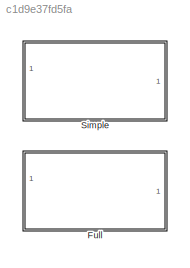
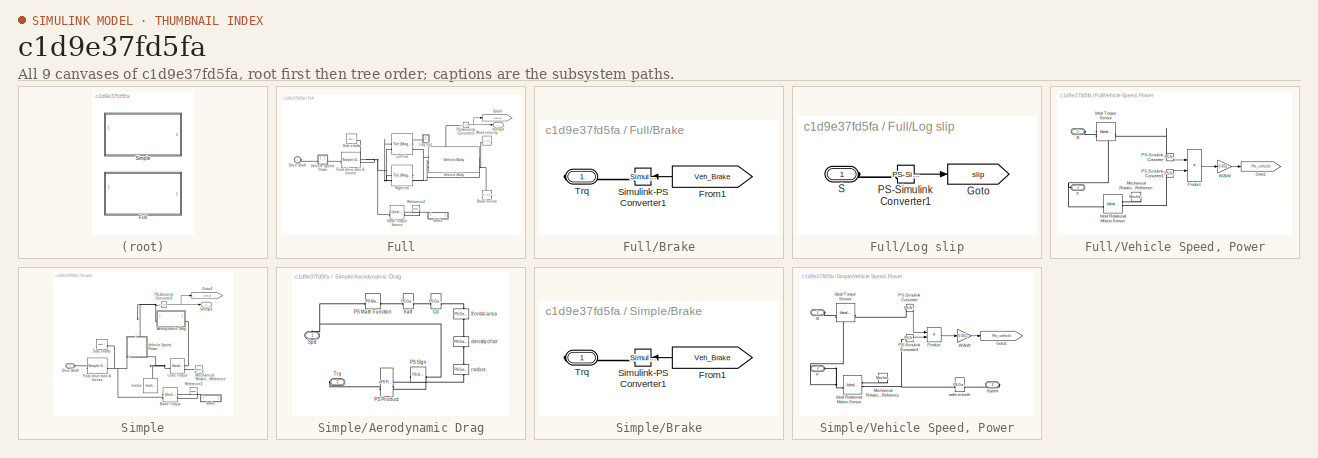
[diagram: thumbnail index - all 9 canvases of the model, root first then tree order]
MODEL slx_c1d9e37fd5fa
KIND library
CONFIG EnableMultiTasking = on
CONFIG SolverName = ode45
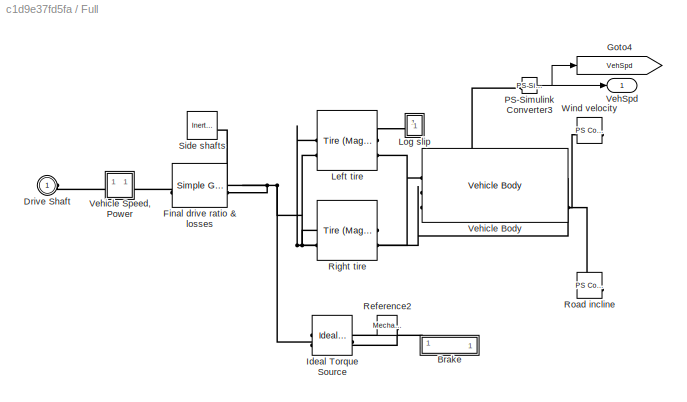
BLOCK [SubSystem] Full
BLOCK [SubSystem] Full/Brake
BLOCK [From] Full/Brake/From1
  GotoTag = Veh_Brake
  NameLocation = top
  TagVisibility = global
BLOCK [Reference] Full/Brake/Simulink-PS Converter1  REF=nesl_utility/Simulink-PS
Converter
  SourceBlock = nesl_utility/Simulink-PS\nConverter
  SourceType = Simulink-PS\nConverter
BLOCK [PMIOPort] Full/Brake/Trq
  Side = Right
BLOCK [PMIOPort] Full/Drive Shaft
  Side = Left
BLOCK [Reference] Full/Final drive ratio & losses  REF=sdl_lib/Gears/Simple Gear
  SourceBlock = sdl_lib/Gears/Simple Gear
  SourceType = Simple Gear
BLOCK [Goto] Full/Goto4
  GotoTag = VehSpd
  TagVisibility = global
BLOCK [Reference] Full/Ideal Torque Source  REF=fl_lib/Mechanical/Mechanical Sources/Ideal Torque Source
  SourceBlock = fl_lib/Mechanical/Mechanical Sources/Ideal Torque Source
  SourceType = Ideal Torque Source
BLOCK [Reference] Full/Left tire  REF=sdl_lib/Tires & Vehicles/Tire (Magic Formula)
  SourceBlock = sdl_lib/Tires & Vehicles/Tire (Magic Formula)
  SourceType = Tire (Magic Formula)
BLOCK [SubSystem] Full/Log slip
BLOCK [Goto] Full/Log slip/Goto
  GotoTag = slip
  TagVisibility = global
BLOCK [Reference] Full/Log slip/PS-Simulink Converter1  REF=nesl_utility/PS-Simulink
Converter
  SourceBlock = nesl_utility/PS-Simulink\nConverter
  SourceType = PS-Simulink\nConverter
BLOCK [PMIOPort] Full/Log slip/S
  Side = Left
BLOCK [Reference] Full/PS-Simulink Converter3  REF=nesl_utility/PS-Simulink
Converter
  SourceBlock = nesl_utility/PS-Simulink\nConverter
  SourceType = PS-Simulink\nConverter
BLOCK [Reference] Full/Reference2  REF=fl_lib/Mechanical/Rotational Elements/Mechanical
Rotational Reference
  NameLocation = top
  SourceBlock = fl_lib/Mechanical/Rotational Elements/Mechanical\nRotational Reference
  SourceType = Mechanical\nRotational Reference
BLOCK [Reference] Full/Right tire  REF=sdl_lib/Tires & Vehicles/Tire (Magic Formula)
  SourceBlock = sdl_lib/Tires & Vehicles/Tire (Magic Formula)
  SourceType = Tire (Magic Formula)
BLOCK [Reference] Full/Road incline  REF=fl_lib/Physical Signals/Sources/PS Constant
  SourceBlock = fl_lib/Physical Signals/Sources/PS Constant
  SourceType = PS Constant
BLOCK [Reference] Full/Side shafts  REF=fl_lib/Mechanical/Rotational Elements/Inertia
  NameLocation = top
  SourceBlock = fl_lib/Mechanical/Rotational Elements/Inertia
  SourceType = Inertia
BLOCK [Outport] Full/VehSpd
  VectorParamsAs1DForOutWhenUnconnected = off
BLOCK [Reference] Full/Vehicle Body  REF=sdl_lib/Tires & Vehicles/Vehicle Body
  SourceBlock = sdl_lib/Tires & Vehicles/Vehicle Body
  SourceType = Vehicle Body
BLOCK [SubSystem] Full/Vehicle Speed, Power
BLOCK [PMIOPort] Full/Vehicle Speed, Power/B
  NameLocation = top
  Side = Left
BLOCK [PMIOPort] Full/Vehicle Speed, Power/F
  NameLocation = top
  Port = 2
  Side = Right
BLOCK [Goto] Full/Vehicle Speed, Power/Goto1
  GotoTag = Pm_vehicle
  TagVisibility = global
BLOCK [Reference] Full/Vehicle Speed, Power/Ideal Rotational Motion Sensor  REF=fl_lib/Mechanical/Mechanical Sensors/Ideal Rotational
Motion Sensor
  SourceBlock = fl_lib/Mechanical/Mechanical Sensors/Ideal Rotational\nMotion Sensor
  SourceType = Ideal Rotational\nMotion Sensor
BLOCK [Reference] Full/Vehicle Speed, Power/Ideal Torque Sensor  REF=fl_lib/Mechanical/Mechanical Sensors/Ideal Torque Sensor
  SourceBlock = fl_lib/Mechanical/Mechanical Sensors/Ideal Torque Sensor
  SourceType = Ideal Torque Sensor
BLOCK [Reference] Full/Vehicle Speed, Power/Mechanical Rotational Reference  REF=fl_lib/Mechanical/Rotational Elements/Mechanical
Rotational Reference
  NameLocation = top
  SourceBlock = fl_lib/Mechanical/Rotational Elements/Mechanical\nRotational Reference
  SourceType = Mechanical\nRotational Reference
BLOCK [Reference] Full/Vehicle Speed, Power/PS-Simulink Converter  REF=nesl_utility/PS-Simulink
Converter
  SourceBlock = nesl_utility/PS-Simulink\nConverter
  SourceType = PS-Simulink\nConverter
BLOCK [Reference] Full/Vehicle Speed, Power/PS-Simulink Converter1  REF=nesl_utility/PS-Simulink
Converter
  SourceBlock = nesl_utility/PS-Simulink\nConverter
  SourceType = PS-Simulink\nConverter
BLOCK [Product] Full/Vehicle Speed, Power/Product
  RndMeth = Zero
BLOCK [Gain] Full/Vehicle Speed, Power/W2kW
  Gain = 0.001
BLOCK [Reference] Full/Wind velocity  REF=fl_lib/Physical Signals/Sources/PS Constant
  SourceBlock = fl_lib/Physical Signals/Sources/PS Constant
  SourceType = PS Constant
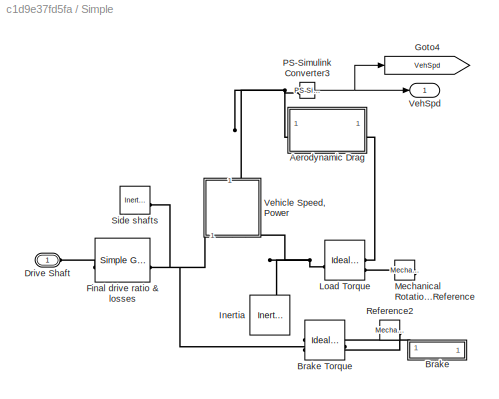
BLOCK [SubSystem] Simple
BLOCK [SubSystem] Simple/Aerodynamic Drag
BLOCK [Reference] Simple/Aerodynamic Drag/Cd  REF=fl_lib/Physical Signals/Functions/PS Gain
  SourceBlock = fl_lib/Physical Signals/Functions/PS Gain
  SourceType = PS Gain
BLOCK [Reference] Simple/Aerodynamic Drag/PS Math Function  REF=fl_lib/Physical Signals/Functions/PS Math Function
  SourceBlock = fl_lib/Physical Signals/Functions/PS Math Function
  SourceType = PS Math Function
BLOCK [Reference] Simple/Aerodynamic Drag/PS Product  REF=fl_lib/Physical Signals/Functions/PS Product
  NameLocation = top
  SourceBlock = fl_lib/Physical Signals/Functions/PS Product
  SourceType = PS Product
BLOCK [Reference] Simple/Aerodynamic Drag/PS Sign  REF=fl_lib/Physical Signals/Nonlinear Operators/PS Sign
  NameLocation = top
  SourceBlock = fl_lib/Physical Signals/Nonlinear Operators/PS Sign
  SourceType = PS Sign
BLOCK [PMIOPort] Simple/Aerodynamic Drag/Spd
  NameLocation = right
  Side = Left
BLOCK [PMIOPort] Simple/Aerodynamic Drag/Trq
  Port = 2
  Side = Right
BLOCK [Reference] Simple/Aerodynamic Drag/density of air  REF=fl_lib/Physical Signals/Functions/PS Gain
  NameLocation = right
  SourceBlock = fl_lib/Physical Signals/Functions/PS Gain
  SourceType = PS Gain
BLOCK [Reference] Simple/Aerodynamic Drag/frontal area  REF=fl_lib/Physical Signals/Functions/PS Gain
  NameLocation = right
  SourceBlock = fl_lib/Physical Signals/Functions/PS Gain
  SourceType = PS Gain
BLOCK [Reference] Simple/Aerodynamic Drag/half  REF=fl_lib/Physical Signals/Functions/PS Gain
  SourceBlock = fl_lib/Physical Signals/Functions/PS Gain
  SourceType = PS Gain
BLOCK [Reference] Simple/Aerodynamic Drag/radius  REF=fl_lib/Physical Signals/Functions/PS Gain
  NameLocation = right
  SourceBlock = fl_lib/Physical Signals/Functions/PS Gain
  SourceType = PS Gain
BLOCK [SubSystem] Simple/Brake
BLOCK [Reference] Simple/Brake Torque  REF=fl_lib/Mechanical/Mechanical Sources/Ideal Torque Source
  SourceBlock = fl_lib/Mechanical/Mechanical Sources/Ideal Torque Source
  SourceType = Ideal Torque Source
BLOCK [From] Simple/Brake/From1
  GotoTag = Veh_Brake
  NameLocation = top
BLOCK [Reference] Simple/Brake/Simulink-PS Converter1  REF=nesl_utility/Simulink-PS
Converter
  SourceBlock = nesl_utility/Simulink-PS\nConverter
  SourceType = Simulink-PS\nConverter
BLOCK [PMIOPort] Simple/Brake/Trq
  Side = Right
BLOCK [PMIOPort] Simple/Drive Shaft
  Side = Left
BLOCK [Reference] Simple/Final drive ratio & losses  REF=sdl_lib/Gears/Simple Gear
  SourceBlock = sdl_lib/Gears/Simple Gear
  SourceType = Simple Gear
BLOCK [Goto] Simple/Goto4
  GotoTag = VehSpd
  TagVisibility = global
BLOCK [Reference] Simple/Inertia  REF=fl_lib/Mechanical/Rotational Elements/Inertia
  NameLocation = left
  SourceBlock = fl_lib/Mechanical/Rotational Elements/Inertia
  SourceType = Inertia
BLOCK [Reference] Simple/Load Torque  REF=fl_lib/Mechanical/Mechanical Sources/Ideal Torque Source
  SourceBlock = fl_lib/Mechanical/Mechanical Sources/Ideal Torque Source
  SourceType = Ideal Torque Source
BLOCK [Reference] Simple/Mechanical Rotational Reference  REF=fl_lib/Mechanical/Rotational Elements/Mechanical
Rotational Reference
  NameLocation = top
  SourceBlock = fl_lib/Mechanical/Rotational Elements/Mechanical\nRotational Reference
  SourceType = Mechanical\nRotational Reference
BLOCK [Reference] Simple/PS-Simulink Converter3  REF=nesl_utility/PS-Simulink
Converter
  SourceBlock = nesl_utility/PS-Simulink\nConverter
  SourceType = PS-Simulink\nConverter
BLOCK [Reference] Simple/Reference2  REF=fl_lib/Mechanical/Rotational Elements/Mechanical
Rotational Reference
  NameLocation = top
  SourceBlock = fl_lib/Mechanical/Rotational Elements/Mechanical\nRotational Reference
  SourceType = Mechanical\nRotational Reference
BLOCK [Reference] Simple/Side shafts  REF=fl_lib/Mechanical/Rotational Elements/Inertia
  NameLocation = top
  SourceBlock = fl_lib/Mechanical/Rotational Elements/Inertia
  SourceType = Inertia
BLOCK [Outport] Simple/VehSpd
  VectorParamsAs1DForOutWhenUnconnected = off
BLOCK [SubSystem] Simple/Vehicle Speed, Power
  NameLocation = right
BLOCK [PMIOPort] Simple/Vehicle Speed, Power/B
  NameLocation = top
  Side = Left
BLOCK [PMIOPort] Simple/Vehicle Speed, Power/F
  NameLocation = top
  Port = 2
  Side = Left
BLOCK [Goto] Simple/Vehicle Speed, Power/Goto1
  GotoTag = Pm_vehicle
  TagVisibility = global
BLOCK [Reference] Simple/Vehicle Speed, Power/Ideal Rotational Motion Sensor  REF=fl_lib/Mechanical/Mechanical Sensors/Ideal Rotational
Motion Sensor
  SourceBlock = fl_lib/Mechanical/Mechanical Sensors/Ideal Rotational\nMotion Sensor
  SourceType = Ideal Rotational\nMotion Sensor
BLOCK [Reference] Simple/Vehicle Speed, Power/Ideal Torque Sensor  REF=fl_lib/Mechanical/Mechanical Sensors/Ideal Torque Sensor
  SourceBlock = fl_lib/Mechanical/Mechanical Sensors/Ideal Torque Sensor
  SourceType = Ideal Torque Sensor
BLOCK [Reference] Simple/Vehicle Speed, Power/Mechanical Rotational Reference  REF=fl_lib/Mechanical/Rotational Elements/Mechanical
Rotational Reference
  NameLocation = top
  SourceBlock = fl_lib/Mechanical/Rotational Elements/Mechanical\nRotational Reference
  SourceType = Mechanical\nRotational Reference
BLOCK [Reference] Simple/Vehicle Speed, Power/PS-Simulink Converter  REF=nesl_utility/PS-Simulink
Converter
  SourceBlock = nesl_utility/PS-Simulink\nConverter
  SourceType = PS-Simulink\nConverter
BLOCK [Reference] Simple/Vehicle Speed, Power/PS-Simulink Converter1  REF=nesl_utility/PS-Simulink
Converter
  SourceBlock = nesl_utility/PS-Simulink\nConverter
  SourceType = PS-Simulink\nConverter
BLOCK [Product] Simple/Vehicle Speed, Power/Product
  RndMeth = Zero
BLOCK [PMIOPort] Simple/Vehicle Speed, Power/Speed
  Port = 3
  Side = Right
BLOCK [Gain] Simple/Vehicle Speed, Power/W2kW
  Gain = 0.001
BLOCK [Reference] Simple/Vehicle Speed, Power/rad//s to km//h  REF=fl_lib/Physical Signals/Functions/PS Gain
  SourceBlock = fl_lib/Physical Signals/Functions/PS Gain
  SourceType = PS Gain
LINE Full/Brake/From1:1 -> Full/Brake/Simulink-PS Converter1:1
LINE Full/Log slip/PS-Simulink Converter1:1 -> Full/Log slip/Goto:1
NET Full/PS-Simulink Converter3:1 -> Full/Goto4:1, Full/VehSpd:1
LINE Full/Vehicle Speed, Power/PS-Simulink Converter1:1 -> Full/Vehicle Speed, Power/Product:2
LINE Full/Vehicle Speed, Power/PS-Simulink Converter:1 -> Full/Vehicle Speed, Power/Product:1
LINE Full/Vehicle Speed, Power/Product:1 -> Full/Vehicle Speed, Power/W2kW:1
LINE Full/Vehicle Speed, Power/W2kW:1 -> Full/Vehicle Speed, Power/Goto1:1
LINE Simple/Brake/From1:1 -> Simple/Brake/Simulink-PS Converter1:1
NET Simple/PS-Simulink Converter3:1 -> Simple/Goto4:1, Simple/VehSpd:1
LINE Simple/Vehicle Speed, Power/PS-Simulink Converter1:1 -> Simple/Vehicle Speed, Power/Product:2
LINE Simple/Vehicle Speed, Power/PS-Simulink Converter:1 -> Simple/Vehicle Speed, Power/Product:1
LINE Simple/Vehicle Speed, Power/Product:1 -> Simple/Vehicle Speed, Power/W2kW:1
LINE Simple/Vehicle Speed, Power/W2kW:1 -> Simple/Vehicle Speed, Power/Goto1:1
PLINE Full/Brake/Simulink-PS Converter1:RConn1 -- Full/Brake/Trq:RConn1
PLINE Full/Brake:RConn1 -- Full/Ideal Torque Source:RConn1
PLINE Full/Drive Shaft:RConn1 -- Full/Vehicle Speed, Power:LConn1
PLINE Full/Final drive ratio & losses:LConn1 -- Full/Vehicle Speed, Power:RConn1
PNET net1: Full/Final drive ratio & losses:RConn1 -- Full/Ideal Torque Source:LConn1 -- Full/Left tire:LConn2 -- Full/Right tire:LConn2 -- Full/Side shafts:LConn1
PLINE Full/Ideal Torque Source:RConn2 -- Full/Reference2:LConn1
PNET net2: Full/Left tire:LConn1 -- Full/Right tire:LConn1 -- Full/Vehicle Body:RConn1
PLINE Full/Left tire:RConn1 -- Full/Log slip:LConn1
PNET net3: Full/Left tire:RConn2 -- Full/Right tire:RConn2 -- Full/Vehicle Body:LConn1
PLINE Full/Log slip/PS-Simulink Converter1:LConn1 -- Full/Log slip/S:RConn1
PLINE Full/PS-Simulink Converter3:LConn1 -- Full/Vehicle Body:LConn2
PLINE Full/Road incline:RConn1 -- Full/Vehicle Body:RConn3
PLINE Full/Vehicle Body:LConn3 -- Full/Wind velocity:RConn1
PLINE Full/Vehicle Speed, Power/B:RConn1 -- Full/Vehicle Speed, Power/Ideal Torque Sensor:LConn1
PNET net4: Full/Vehicle Speed, Power/F:RConn1 -- Full/Vehicle Speed, Power/Ideal Rotational Motion Sensor:LConn1 -- Full/Vehicle Speed, Power/Ideal Torque Sensor:RConn1
PLINE Full/Vehicle Speed, Power/Ideal Rotational Motion Sensor:RConn1 -- Full/Vehicle Speed, Power/Mechanical Rotational Reference:LConn1
PLINE Full/Vehicle Speed, Power/Ideal Rotational Motion Sensor:RConn2 -- Full/Vehicle Speed, Power/PS-Simulink Converter1:LConn1
PLINE Full/Vehicle Speed, Power/Ideal Torque Sensor:RConn2 -- Full/Vehicle Speed, Power/PS-Simulink Converter:LConn1
PLINE Simple/Aerodynamic Drag/Cd:LConn1 -- Simple/Aerodynamic Drag/half:RConn1
PLINE Simple/Aerodynamic Drag/Cd:RConn1 -- Simple/Aerodynamic Drag/frontal area:LConn1
PNET net5: Simple/Aerodynamic Drag/PS Math Function:LConn1 -- Simple/Aerodynamic Drag/PS Sign:LConn1 -- Simple/Aerodynamic Drag/Spd:RConn1
PLINE Simple/Aerodynamic Drag/PS Math Function:RConn1 -- Simple/Aerodynamic Drag/half:LConn1
PLINE Simple/Aerodynamic Drag/PS Product:LConn1 -- Simple/Aerodynamic Drag/radius:RConn1
PLINE Simple/Aerodynamic Drag/PS Product:LConn2 -- Simple/Aerodynamic Drag/PS Sign:RConn1
PLINE Simple/Aerodynamic Drag/PS Product:RConn1 -- Simple/Aerodynamic Drag/Trq:RConn1
PLINE Simple/Aerodynamic Drag/density of air:LConn1 -- Simple/Aerodynamic Drag/frontal area:RConn1
PLINE Simple/Aerodynamic Drag/density of air:RConn1 -- Simple/Aerodynamic Drag/radius:LConn1
PNET net6: Simple/Aerodynamic Drag:LConn1 -- Simple/PS-Simulink Converter3:LConn1 -- Simple/Vehicle Speed, Power:RConn1
PLINE Simple/Aerodynamic Drag:RConn1 -- Simple/Load Torque:RConn1
PNET net7: Simple/Brake Torque:LConn1 -- Simple/Final drive ratio & losses:RConn1 -- Simple/Side shafts:LConn1 -- Simple/Vehicle Speed, Power:LConn1
PLINE Simple/Brake Torque:RConn1 -- Simple/Brake:RConn1
PLINE Simple/Brake Torque:RConn2 -- Simple/Reference2:LConn1
PLINE Simple/Brake/Simulink-PS Converter1:RConn1 -- Simple/Brake/Trq:RConn1
PLINE Simple/Drive Shaft:RConn1 -- Simple/Final drive ratio & losses:LConn1
PNET net8: Simple/Inertia:LConn1 -- Simple/Load Torque:LConn1 -- Simple/Vehicle Speed, Power:LConn2
PLINE Simple/Load Torque:RConn2 -- Simple/Mechanical Rotational Reference:LConn1
PLINE Simple/Vehicle Speed, Power/B:RConn1 -- Simple/Vehicle Speed, Power/Ideal Torque Sensor:LConn1
PNET net9: Simple/Vehicle Speed, Power/F:RConn1 -- Simple/Vehicle Speed, Power/Ideal Rotational Motion Sensor:LConn1 -- Simple/Vehicle Speed, Power/Ideal Torque Sensor:RConn1
PLINE Simple/Vehicle Speed, Power/Ideal Rotational Motion Sensor:RConn1 -- Simple/Vehicle Speed, Power/Mechanical Rotational Reference:LConn1
PNET net10: Simple/Vehicle Speed, Power/Ideal Rotational Motion Sensor:RConn2 -- Simple/Vehicle Speed, Power/PS-Simulink Converter1:LConn1 -- Simple/Vehicle Speed, Power/rad//s to km//h:LConn1
PLINE Simple/Vehicle Speed, Power/Ideal Torque Sensor:RConn2 -- Simple/Vehicle Speed, Power/PS-Simulink Converter:LConn1
PLINE Simple/Vehicle Speed, Power/Speed:RConn1 -- Simple/Vehicle Speed, Power/rad//s to km//h:RConn1
note: NET lines group one-source signal fan-out (src -> all destinations, sorted); 1:1 wires keep LINE; PNET lines group multi-terminal physical nets as a canonical sorted terminal list (undirected conserving connections); 2-terminal nets keep the pairwise PLINE form
